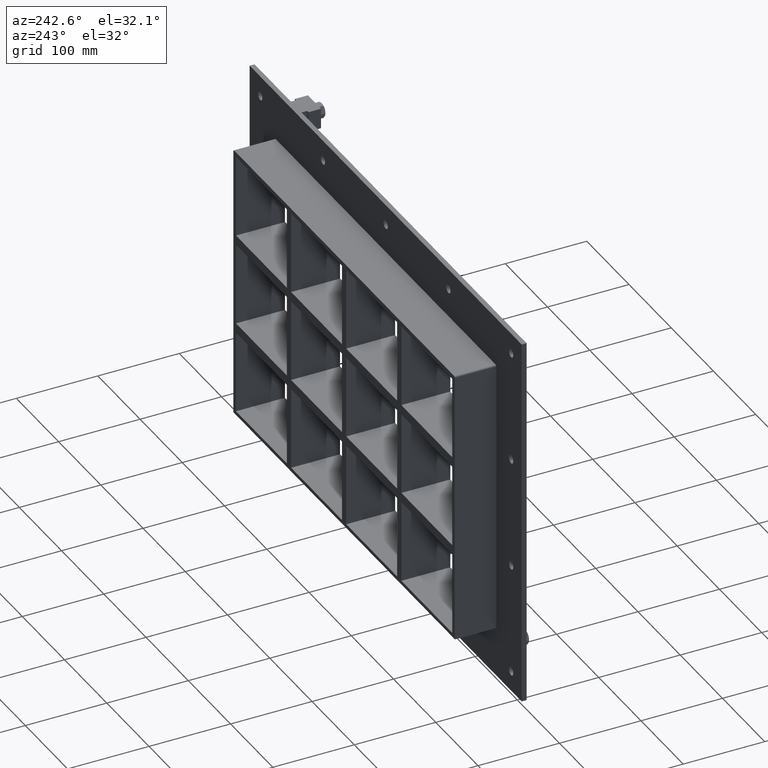
[diagram: clean part render]
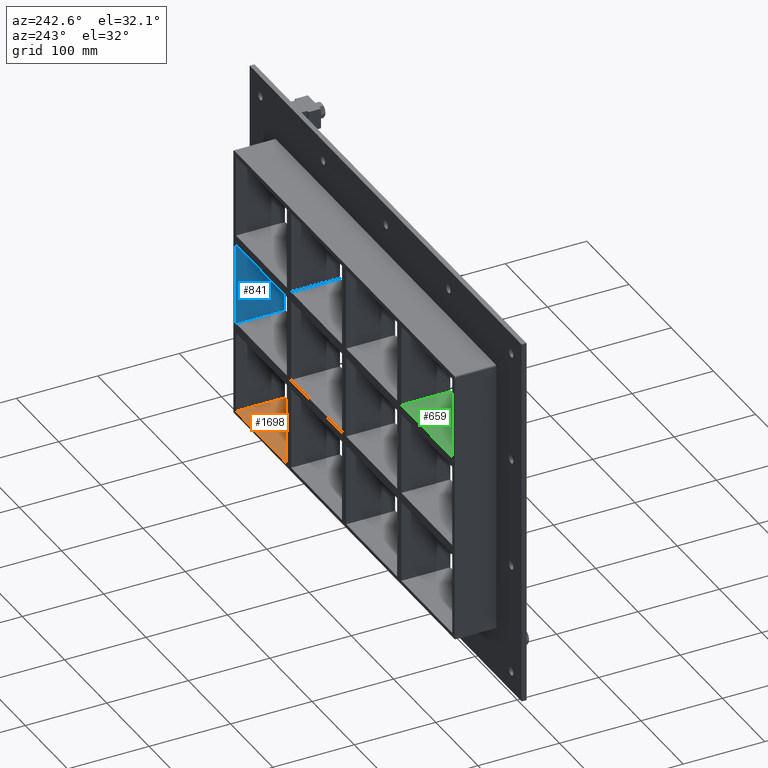
[diagram: same view with three faces highlighted in distinct colors, each labeled with its STEP entity id]
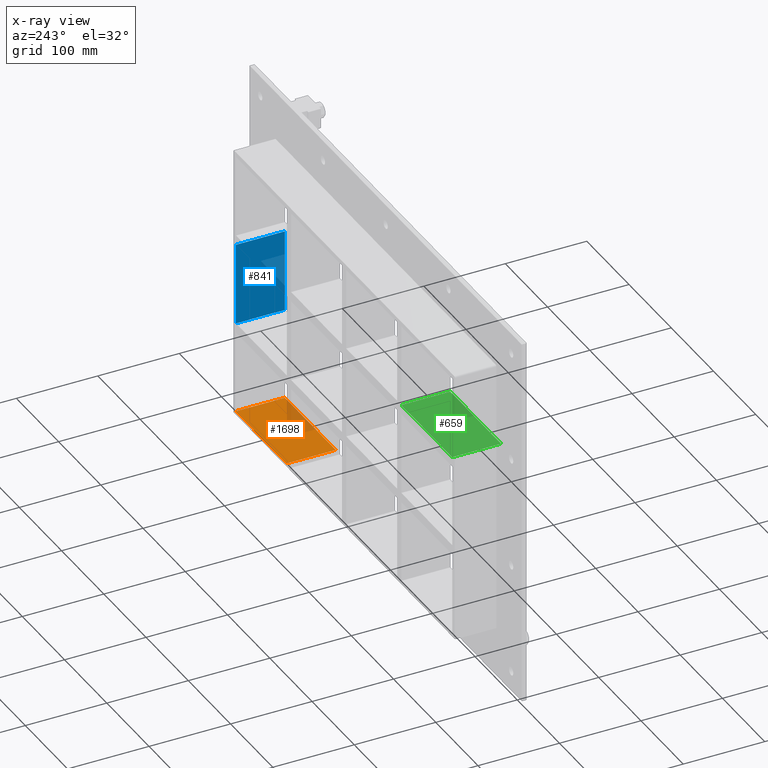
[diagram: x-ray of the same camera — body ghosted, the three highlighted faces saturated]
A machine part, auxiliary view with three faces highlighted in distinct colors.
The next image is the same camera in x-ray (body ghosted, the three faces saturated) — at least one of them is partly hidden behind the body in this view.
Their STEP definitions:

[orange] entity #1698 — the highlighted planar face has unit normal (0, 0, -1).
#1379=CARTESIAN_POINT('',(135.50000000000728,57.0,-163.4999999999817));
#1380=VERTEX_POINT('',#1379);
#1381=CARTESIAN_POINT('',(255.99999999999997,57.0,-163.5));
#1382=VERTEX_POINT('',#1381);
#1383=CARTESIAN_POINT('',(135.50000000000728,57.0,-163.5));
#1384=DIRECTION('',(1.0,0.0,0.0));
#1385=VECTOR('',#1384,120.4999999999927);
#1386=LINE('',#1383,#1385);
#1387=EDGE_CURVE('',#1380,#1382,#1386,.T.);
#1506=CARTESIAN_POINT('',(135.50000000000728,-3.0,-163.49999999998172));
#1507=VERTEX_POINT('',#1506);
#1514=CARTESIAN_POINT('',(135.5000000000073,57.000000000000007,-163.5));
#1515=DIRECTION('',(0.0,-1.0,0.0));
#1516=VECTOR('',#1515,60.000000000000007);
#1517=LINE('',#1514,#1516);
#1518=EDGE_CURVE('',#1380,#1507,#1517,.T.);
#1675=CARTESIAN_POINT('',(255.99999999999997,0.0,-163.5));
#1676=DIRECTION('',(0.0,0.0,-1.0));
#1677=DIRECTION('',(-1.0,0.0,0.0));
#1678=AXIS2_PLACEMENT_3D('',#1675,#1676,#1677);
#1679=PLANE('',#1678);
#1680=ORIENTED_EDGE('',*,*,#1518,.T.);
#1681=CARTESIAN_POINT('',(255.99999999999997,-3.0,-163.5));
#1682=VERTEX_POINT('',#1681);
#1683=CARTESIAN_POINT('',(255.99999999999997,-3.0,-163.5));
#1684=DIRECTION('',(-1.0,0.0,0.0));
#1685=VECTOR('',#1684,120.4999999999927);
#1686=LINE('',#1683,#1685);
#1687=EDGE_CURVE('',#1682,#1507,#1686,.T.);
#1688=ORIENTED_EDGE('',*,*,#1687,.F.);
#1689=CARTESIAN_POINT('',(255.99999999999997,56.999999999999993,-163.5));
#1690=DIRECTION('',(0.0,-1.0,0.0));
#1691=VECTOR('',#1690,59.999999999999993);
#1692=LINE('',#1689,#1691);
#1693=EDGE_CURVE('',#1382,#1682,#1692,.T.);
#1694=ORIENTED_EDGE('',*,*,#1693,.F.);
#1695=ORIENTED_EDGE('',*,*,#1387,.F.);
#1696=EDGE_LOOP('',(#1680,#1688,#1694,#1695));
#1697=FACE_OUTER_BOUND('',#1696,.T.);
#1698=ADVANCED_FACE('',(#1697),#1679,.F.);

[blue] entity #841 — the highlighted planar face has unit normal (1, 0, 0).
#555=CARTESIAN_POINT('',(256.00000000000358,57.0,50.499999999989093));
#556=VERTEX_POINT('',#555);
#563=CARTESIAN_POINT('',(256.00000000000364,-3.0,50.499999999989093));
#564=VERTEX_POINT('',#563);
#565=CARTESIAN_POINT('',(255.99999999999997,-3.0,50.4999999999891));
#566=DIRECTION('',(0.0,1.0,0.0));
#567=VECTOR('',#566,60.000000000000007);
#568=LINE('',#565,#567);
#569=EDGE_CURVE('',#564,#556,#568,.T.);
#811=CARTESIAN_POINT('',(255.99999999999997,0.0,163.5));
#812=DIRECTION('',(1.0,0.0,0.0));
#813=DIRECTION('',(0.0,0.0,-1.0));
#814=AXIS2_PLACEMENT_3D('',#811,#812,#813);
#815=PLANE('',#814);
#816=ORIENTED_EDGE('',*,*,#569,.T.);
#817=CARTESIAN_POINT('',(255.99999999999949,57.0,-50.499999999999545));
#818=VERTEX_POINT('',#817);
#819=CARTESIAN_POINT('',(255.99999999999997,57.0,-50.499999999999545));
#820=DIRECTION('',(0.0,0.0,1.0));
#821=VECTOR('',#820,100.99999999998863);
#822=LINE('',#819,#821);
#823=EDGE_CURVE('',#818,#556,#822,.T.);
#824=ORIENTED_EDGE('',*,*,#823,.F.);
#825=CARTESIAN_POINT('',(255.99999999999952,-3.0,-50.499999999999545));
#826=VERTEX_POINT('',#825);
#827=CARTESIAN_POINT('',(255.99999999999997,57.000000000000007,-50.499999999999545));
#828=DIRECTION('',(0.0,-1.0,0.0));
#829=VECTOR('',#828,60.000000000000007);
#830=LINE('',#827,#829);
#831=EDGE_CURVE('',#818,#826,#830,.T.);
#832=ORIENTED_EDGE('',*,*,#831,.T.);
#833=CARTESIAN_POINT('',(255.99999999999997,-3.0,50.499999999989086));
#834=DIRECTION('',(0.0,0.0,-1.0));
#835=VECTOR('',#834,100.99999999998863);
#836=LINE('',#833,#835);
#837=EDGE_CURVE('',#564,#826,#836,.T.);
#838=ORIENTED_EDGE('',*,*,#837,.F.);
#839=EDGE_LOOP('',(#816,#824,#832,#838));
#840=FACE_OUTER_BOUND('',#839,.T.);
#841=ADVANCED_FACE('',(#840),#815,.F.);

[green] entity #659 — the highlighted planar face has unit normal (0, 0, 1).
#620=CARTESIAN_POINT('',(-255.99999999999869,-3.0,62.500000000000462));
#621=DIRECTION('',(0.0,0.0,1.0));
#622=DIRECTION('',(1.0,0.0,0.0));
#623=AXIS2_PLACEMENT_3D('',#620,#621,#622);
#624=PLANE('',#623);
#625=CARTESIAN_POINT('',(-135.50000000000034,57.0,62.500000000000462));
#626=VERTEX_POINT('',#625);
#627=CARTESIAN_POINT('',(-135.50000000000034,-3.0,62.500000000000462));
#628=VERTEX_POINT('',#627);
#629=CARTESIAN_POINT('',(-135.50000000000037,57.0,62.500000000000462));
#630=DIRECTION('',(0.0,-1.0,0.0));
#631=VECTOR('',#630,60.0);
#632=LINE('',#629,#631);
#633=EDGE_CURVE('',#626,#628,#632,.T.);
#634=ORIENTED_EDGE('',*,*,#633,.F.);
#635=CARTESIAN_POINT('',(-255.99999999999869,57.0,62.500000000000462));
#636=VERTEX_POINT('',#635);
#637=CARTESIAN_POINT('',(-255.99999999999869,57.0,62.500000000000462));
#638=DIRECTION('',(1.0,0.0,0.0));
#639=VECTOR('',#638,120.49999999999835);
#640=LINE('',#637,#639);
#641=EDGE_CURVE('',#636,#626,#640,.T.);
#642=ORIENTED_EDGE('',*,*,#641,.F.);
#643=CARTESIAN_POINT('',(-255.99999999999869,-3.0,62.500000000000462));
#644=VERTEX_POINT('',#643);
#645=CARTESIAN_POINT('',(-256.0,-3.0,62.500000000000462));
#646=DIRECTION('',(0.0,1.0,0.0));
#647=VECTOR('',#646,60.000000000000007);
#648=LINE('',#645,#647);
#649=EDGE_CURVE('',#644,#636,#648,.T.);
#650=ORIENTED_EDGE('',*,*,#649,.F.);
#651=CARTESIAN_POINT('',(-255.99999999999869,-3.0,62.500000000000462));
#652=DIRECTION('',(1.0,0.0,0.0));
#653=VECTOR('',#652,120.49999999999835);
#654=LINE('',#651,#653);
#655=EDGE_CURVE('',#644,#628,#654,.T.);
#656=ORIENTED_EDGE('',*,*,#655,.T.);
#657=EDGE_LOOP('',(#634,#642,#650,#656));
#658=FACE_OUTER_BOUND('',#657,.T.);
#659=ADVANCED_FACE('',(#658),#624,.T.);